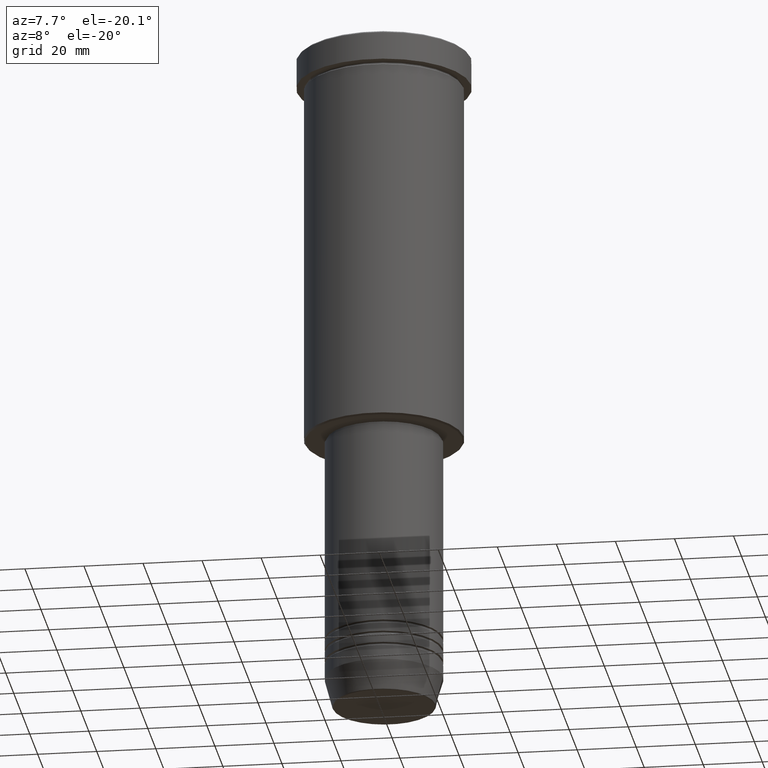
[diagram: clean part render]
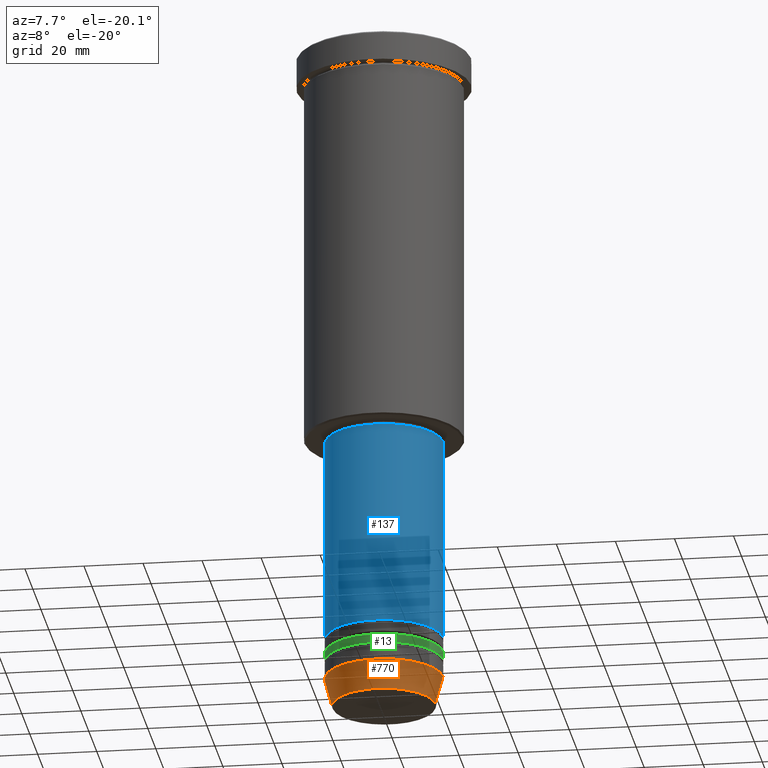
[diagram: same view with three faces highlighted in distinct colors, each labeled with its STEP entity id]
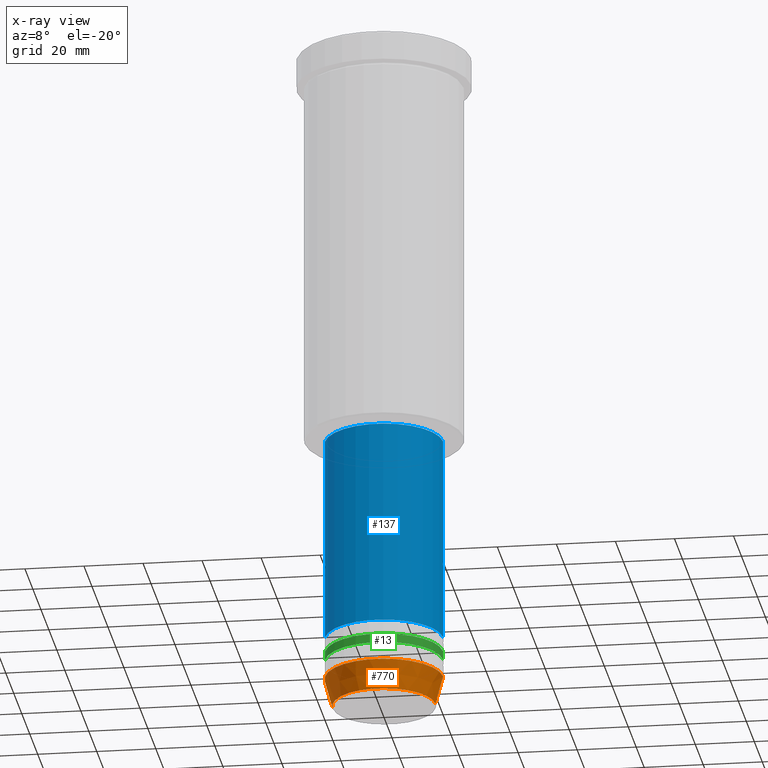
[diagram: x-ray of the same camera — body ghosted, the three highlighted faces saturated]
A machine part, auxiliary view with three faces highlighted in distinct colors.
The next image is the same camera in x-ray (body ghosted, the three faces saturated) — at least one of them is partly hidden behind the body in this view.
Their STEP definitions:

[orange] entity #770 — the highlighted conical surface has half-angle 15 deg.
#73 = CARTESIAN_POINT ( 'NONE',  ( -17.41980749484382329, 2.291302373663531915E-15, -230.6294095225512990 ) ) ;
#78 = FACE_OUTER_BOUND ( 'NONE', #95, .T. ) ;
#95 = EDGE_LOOP ( 'NONE', ( #945, #134, #272, #917 ) ) ;
#134 = ORIENTED_EDGE ( 'NONE', *, *, #798, .T. ) ;
#242 = CIRCLE ( 'NONE', #739, 20.00000000000000000 ) ;
#272 = ORIENTED_EDGE ( 'NONE', *, *, #592, .T. ) ;
#306 = CARTESIAN_POINT ( 'NONE',  ( -20.00000000000000000, 2.449293598294706513E-15, -221.0000000000000284 ) ) ;
#326 = CARTESIAN_POINT ( 'NONE',  ( -20.00000000000000000, 2.449293598294706513E-15, -221.0000000000000284 ) ) ;
#327 = CARTESIAN_POINT ( 'NONE',  ( 20.00000000000000000, 0.000000000000000000, -221.0000000000000284 ) ) ;
#343 = DIRECTION ( 'NONE',  ( -0.2588190451025211836, 3.169619151431770488E-17, 0.9659258262890680902 ) ) ;
#363 = VERTEX_POINT ( 'NONE', #629 ) ;
#399 = DIRECTION ( 'NONE',  ( -0.000000000000000000, -0.000000000000000000, 1.000000000000000000 ) ) ;
#403 = DIRECTION ( 'NONE',  ( 1.000000000000000000, 0.000000000000000000, 0.000000000000000000 ) ) ;
#452 = AXIS2_PLACEMENT_3D ( 'NONE', #541, #912, #822 ) ;
#522 = AXIS2_PLACEMENT_3D ( 'NONE', #718, #1086, #534 ) ;
#534 = DIRECTION ( 'NONE',  ( 1.000000000000000000, 0.000000000000000000, 0.000000000000000000 ) ) ;
#541 = CARTESIAN_POINT ( 'NONE',  ( 0.000000000000000000, 0.000000000000000000, -230.6294095225512990 ) ) ;
#574 = VERTEX_POINT ( 'NONE', #1145 ) ;
#592 = EDGE_CURVE ( 'NONE', #363, #574, #624, .T. ) ;
#608 = LINE ( 'NONE', #326, #716 ) ;
#624 = LINE ( 'NONE', #327, #639 ) ;
#629 = CARTESIAN_POINT ( 'NONE',  ( 17.41980749484382329, 0.000000000000000000, -230.6294095225512990 ) ) ;
#639 = VECTOR ( 'NONE', #1070, 1000.000000000000114 ) ;
#716 = VECTOR ( 'NONE', #343, 1000.000000000000114 ) ;
#718 = CARTESIAN_POINT ( 'NONE',  ( 0.000000000000000000, 0.000000000000000000, -221.0000000000000284 ) ) ;
#737 = CONICAL_SURFACE ( 'NONE', #522, 20.00000000000000000, 0.2617993877991499074 ) ;
#739 = AXIS2_PLACEMENT_3D ( 'NONE', #1128, #399, #403 ) ;
#770 = ADVANCED_FACE ( 'NONE', ( #78 ), #737, .T. ) ;
#798 = EDGE_CURVE ( 'NONE', #1017, #363, #816, .T. ) ;
#816 = CIRCLE ( 'NONE', #452, 17.41980749484382329 ) ;
#822 = DIRECTION ( 'NONE',  ( 1.000000000000000000, 0.000000000000000000, 0.000000000000000000 ) ) ;
#824 = VERTEX_POINT ( 'NONE', #306 ) ;
#866 = EDGE_CURVE ( 'NONE', #824, #574, #242, .T. ) ;
#912 = DIRECTION ( 'NONE',  ( -0.000000000000000000, -0.000000000000000000, 1.000000000000000000 ) ) ;
#917 = ORIENTED_EDGE ( 'NONE', *, *, #866, .F. ) ;
#945 = ORIENTED_EDGE ( 'NONE', *, *, #985, .F. ) ;
#985 = EDGE_CURVE ( 'NONE', #1017, #824, #608, .T. ) ;
#1017 = VERTEX_POINT ( 'NONE', #73 ) ;
#1070 = DIRECTION ( 'NONE',  ( 0.2588190451025211836, 0.000000000000000000, 0.9659258262890680902 ) ) ;
#1086 = DIRECTION ( 'NONE',  ( -0.000000000000000000, -0.000000000000000000, 1.000000000000000000 ) ) ;
#1128 = CARTESIAN_POINT ( 'NONE',  ( 0.000000000000000000, 0.000000000000000000, -221.0000000000000284 ) ) ;
#1145 = CARTESIAN_POINT ( 'NONE',  ( 20.00000000000000000, 0.000000000000000000, -221.0000000000000284 ) ) ;

[blue] entity #137 — the highlighted cylindrical surface (partial cylindrical patch) has radius 20 mm, axis along (-0, -0, 1).
#3 = VECTOR ( 'NONE', #132, 1000.000000000000000 ) ;
#20 = ORIENTED_EDGE ( 'NONE', *, *, #472, .T. ) ;
#23 = AXIS2_PLACEMENT_3D ( 'NONE', #1182, #449, #354 ) ;
#26 = CIRCLE ( 'NONE', #1119, 20.00000000000000000 ) ;
#39 = CARTESIAN_POINT ( 'NONE',  ( 19.99999999999999645, 0.000000000000000000, 0.000000000000000000 ) ) ;
#40 = ORIENTED_EDGE ( 'NONE', *, *, #706, .F. ) ;
#57 = CARTESIAN_POINT ( 'NONE',  ( 0.000000000000000000, 0.000000000000000000, 0.000000000000000000 ) ) ;
#92 = LINE ( 'NONE', #776, #3 ) ;
#103 = AXIS2_PLACEMENT_3D ( 'NONE', #57, #440, #164 ) ;
#117 = LINE ( 'NONE', #39, #239 ) ;
#132 = DIRECTION ( 'NONE',  ( -0.000000000000000000, -0.000000000000000000, 1.000000000000000000 ) ) ;
#137 = ADVANCED_FACE ( 'NONE', ( #979 ), #148, .T. ) ;
#148 = CYLINDRICAL_SURFACE ( 'NONE', #103, 19.99999999999999645 ) ;
#164 = DIRECTION ( 'NONE',  ( 1.000000000000000000, 0.000000000000000000, 0.000000000000000000 ) ) ;
#189 = ORIENTED_EDGE ( 'NONE', *, *, #808, .F. ) ;
#239 = VECTOR ( 'NONE', #409, 1000.000000000000000 ) ;
#354 = DIRECTION ( 'NONE',  ( 1.000000000000000000, 0.000000000000000000, 0.000000000000000000 ) ) ;
#409 = DIRECTION ( 'NONE',  ( -0.000000000000000000, -0.000000000000000000, 1.000000000000000000 ) ) ;
#440 = DIRECTION ( 'NONE',  ( -0.000000000000000000, -0.000000000000000000, 1.000000000000000000 ) ) ;
#444 = DIRECTION ( 'NONE',  ( 1.000000000000000000, 0.000000000000000000, 0.000000000000000000 ) ) ;
#449 = DIRECTION ( 'NONE',  ( -0.000000000000000000, -0.000000000000000000, 1.000000000000000000 ) ) ;
#456 = CARTESIAN_POINT ( 'NONE',  ( -19.99999999999999645, 2.449293598294706119E-15, -137.0000000000000284 ) ) ;
#472 = EDGE_CURVE ( 'NONE', #692, #1034, #117, .T. ) ;
#492 = CARTESIAN_POINT ( 'NONE',  ( -20.00000000000000000, 2.449293598294706513E-15, -206.9999999999999432 ) ) ;
#606 = CIRCLE ( 'NONE', #23, 19.99999999999999645 ) ;
#692 = VERTEX_POINT ( 'NONE', #1107 ) ;
#706 = EDGE_CURVE ( 'NONE', #746, #1034, #606, .T. ) ;
#715 = DIRECTION ( 'NONE',  ( -0.000000000000000000, -0.000000000000000000, 1.000000000000000000 ) ) ;
#722 = CARTESIAN_POINT ( 'NONE',  ( 0.000000000000000000, 0.000000000000000000, -206.9999999999999432 ) ) ;
#733 = EDGE_LOOP ( 'NONE', ( #189, #836, #20, #40 ) ) ;
#746 = VERTEX_POINT ( 'NONE', #456 ) ;
#776 = CARTESIAN_POINT ( 'NONE',  ( -19.99999999999999645, 2.449293598294706119E-15, 0.000000000000000000 ) ) ;
#808 = EDGE_CURVE ( 'NONE', #923, #746, #92, .T. ) ;
#836 = ORIENTED_EDGE ( 'NONE', *, *, #1166, .T. ) ;
#879 = CARTESIAN_POINT ( 'NONE',  ( 19.99999999999999645, 0.000000000000000000, -137.0000000000000284 ) ) ;
#923 = VERTEX_POINT ( 'NONE', #492 ) ;
#979 = FACE_OUTER_BOUND ( 'NONE', #733, .T. ) ;
#1034 = VERTEX_POINT ( 'NONE', #879 ) ;
#1107 = CARTESIAN_POINT ( 'NONE',  ( 20.00000000000000000, 0.000000000000000000, -206.9999999999999432 ) ) ;
#1119 = AXIS2_PLACEMENT_3D ( 'NONE', #722, #715, #444 ) ;
#1166 = EDGE_CURVE ( 'NONE', #923, #692, #26, .T. ) ;
#1182 = CARTESIAN_POINT ( 'NONE',  ( 0.000000000000000000, 0.000000000000000000, -137.0000000000000284 ) ) ;

[green] entity #13 — the highlighted cylindrical surface (partial cylindrical patch) has radius 20 mm, axis along (-0, -0, 1).
#13 = ADVANCED_FACE ( 'NONE', ( #128 ), #1141, .T. ) ;
#30 = EDGE_CURVE ( 'NONE', #688, #871, #570, .T. ) ;
#34 = DIRECTION ( 'NONE',  ( -0.000000000000000000, -0.000000000000000000, 1.000000000000000000 ) ) ;
#101 = CARTESIAN_POINT ( 'NONE',  ( 20.00000000000000000, 0.000000000000000000, -214.9999999999999147 ) ) ;
#114 = CARTESIAN_POINT ( 'NONE',  ( 20.00000000000000000, 0.000000000000000000, 0.000000000000000000 ) ) ;
#128 = FACE_OUTER_BOUND ( 'NONE', #316, .T. ) ;
#176 = DIRECTION ( 'NONE',  ( 1.000000000000000000, 0.000000000000000000, 0.000000000000000000 ) ) ;
#184 = VECTOR ( 'NONE', #34, 1000.000000000000000 ) ;
#190 = VERTEX_POINT ( 'NONE', #708 ) ;
#229 = DIRECTION ( 'NONE',  ( -0.000000000000000000, -0.000000000000000000, 1.000000000000000000 ) ) ;
#254 = CIRCLE ( 'NONE', #886, 20.00000000000000000 ) ;
#275 = DIRECTION ( 'NONE',  ( -0.000000000000000000, -0.000000000000000000, 1.000000000000000000 ) ) ;
#303 = DIRECTION ( 'NONE',  ( 1.000000000000000000, 0.000000000000000000, 0.000000000000000000 ) ) ;
#315 = ORIENTED_EDGE ( 'NONE', *, *, #728, .F. ) ;
#316 = EDGE_LOOP ( 'NONE', ( #922, #383, #1002, #315 ) ) ;
#380 = CARTESIAN_POINT ( 'NONE',  ( 0.000000000000000000, 0.000000000000000000, -211.9999999999999432 ) ) ;
#383 = ORIENTED_EDGE ( 'NONE', *, *, #433, .T. ) ;
#385 = EDGE_CURVE ( 'NONE', #907, #190, #634, .T. ) ;
#433 = EDGE_CURVE ( 'NONE', #907, #688, #254, .T. ) ;
#570 = LINE ( 'NONE', #114, #184 ) ;
#634 = LINE ( 'NONE', #1130, #752 ) ;
#688 = VERTEX_POINT ( 'NONE', #101 ) ;
#697 = CIRCLE ( 'NONE', #908, 20.00000000000000000 ) ;
#708 = CARTESIAN_POINT ( 'NONE',  ( -20.00000000000000000, 2.449293598294706513E-15, -211.9999999999999432 ) ) ;
#728 = EDGE_CURVE ( 'NONE', #190, #871, #697, .T. ) ;
#752 = VECTOR ( 'NONE', #1120, 1000.000000000000000 ) ;
#871 = VERTEX_POINT ( 'NONE', #932 ) ;
#886 = AXIS2_PLACEMENT_3D ( 'NONE', #1045, #1032, #1027 ) ;
#907 = VERTEX_POINT ( 'NONE', #1050 ) ;
#908 = AXIS2_PLACEMENT_3D ( 'NONE', #380, #275, #176 ) ;
#922 = ORIENTED_EDGE ( 'NONE', *, *, #385, .F. ) ;
#932 = CARTESIAN_POINT ( 'NONE',  ( 20.00000000000000000, 0.000000000000000000, -211.9999999999999432 ) ) ;
#1002 = ORIENTED_EDGE ( 'NONE', *, *, #30, .T. ) ;
#1027 = DIRECTION ( 'NONE',  ( 1.000000000000000000, 0.000000000000000000, 0.000000000000000000 ) ) ;
#1032 = DIRECTION ( 'NONE',  ( -0.000000000000000000, -0.000000000000000000, 1.000000000000000000 ) ) ;
#1045 = CARTESIAN_POINT ( 'NONE',  ( 0.000000000000000000, 0.000000000000000000, -214.9999999999999147 ) ) ;
#1050 = CARTESIAN_POINT ( 'NONE',  ( -20.00000000000000000, 2.449293598294706513E-15, -214.9999999999999147 ) ) ;
#1052 = CARTESIAN_POINT ( 'NONE',  ( 0.000000000000000000, 0.000000000000000000, 0.000000000000000000 ) ) ;
#1085 = AXIS2_PLACEMENT_3D ( 'NONE', #1052, #229, #303 ) ;
#1120 = DIRECTION ( 'NONE',  ( -0.000000000000000000, -0.000000000000000000, 1.000000000000000000 ) ) ;
#1130 = CARTESIAN_POINT ( 'NONE',  ( -20.00000000000000000, 2.449293598294706513E-15, 0.000000000000000000 ) ) ;
#1141 = CYLINDRICAL_SURFACE ( 'NONE', #1085, 20.00000000000000000 ) ;